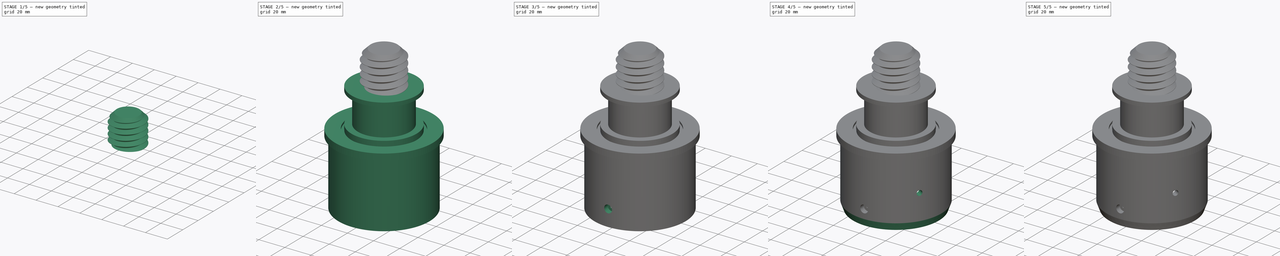
[diagram: build sequence overview — one tinted view per stage of 5, left to right]
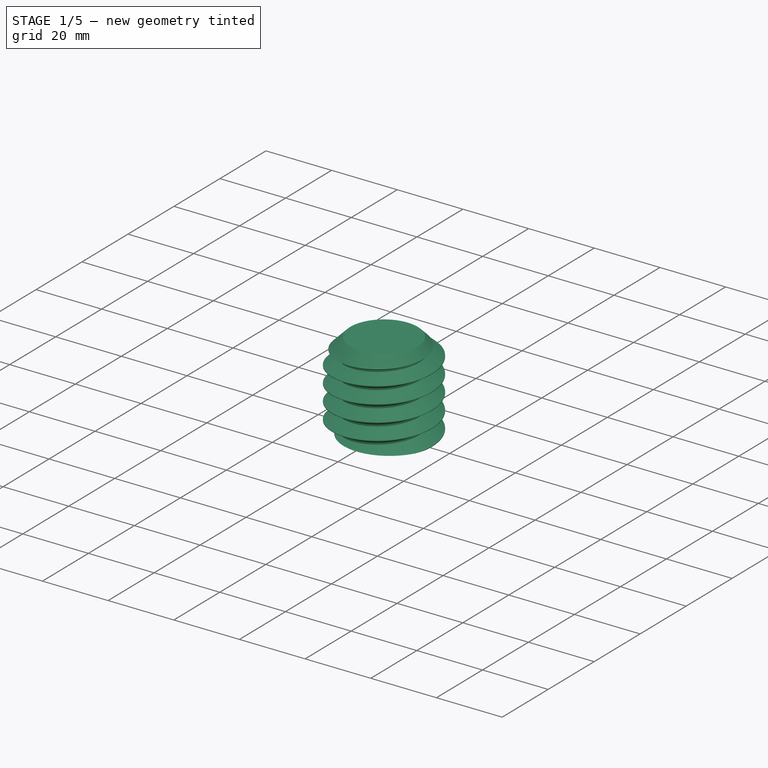
[diagram: stage 1 of 5 — iso view after this stage's code; geometry added in this stage tinted green]
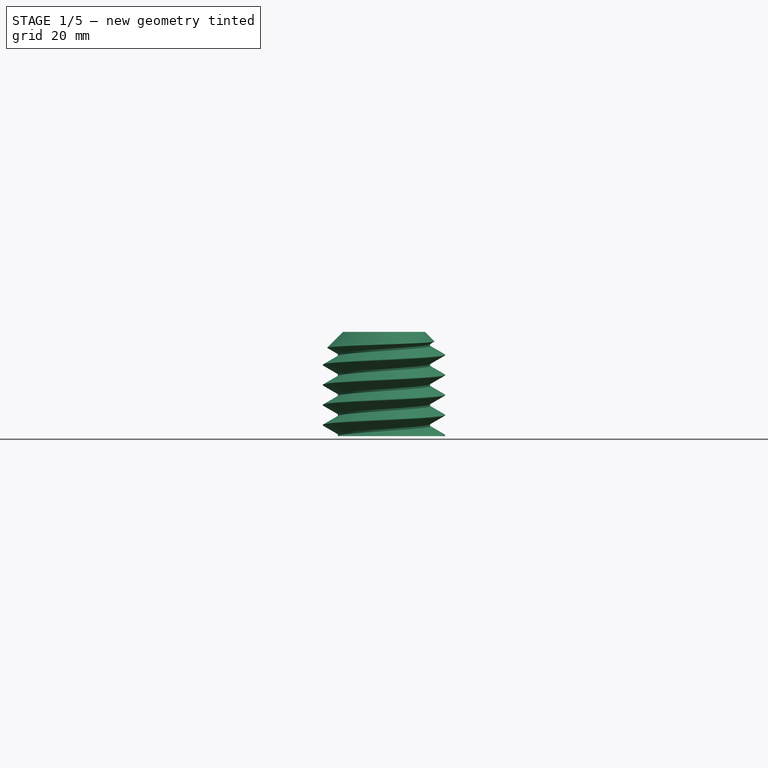
[diagram: stage 1 of 5 — front view after this stage's code; geometry added in this stage tinted green]
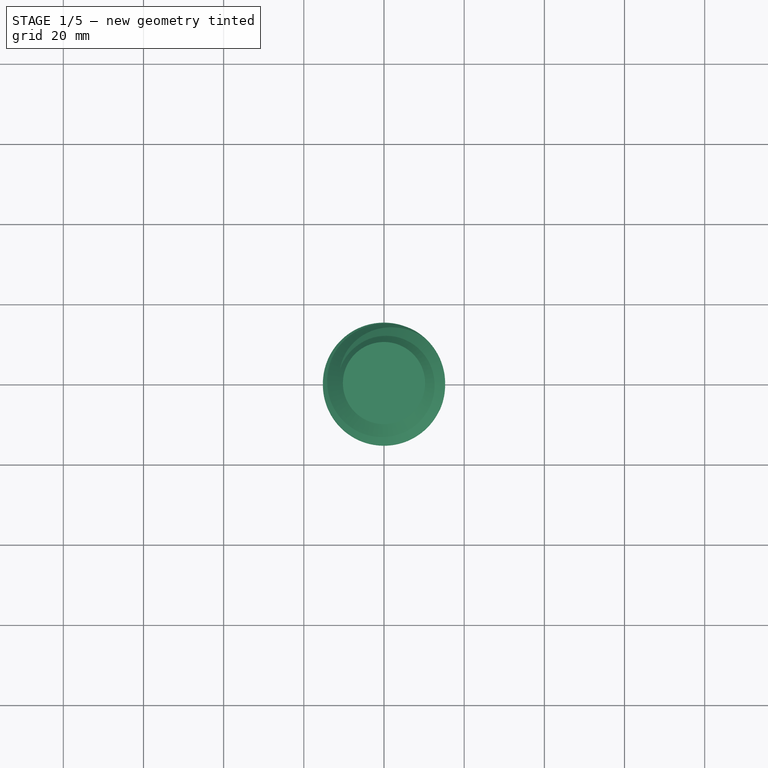
[diagram: stage 1 of 5 — top view after this stage's code; geometry added in this stage tinted green]
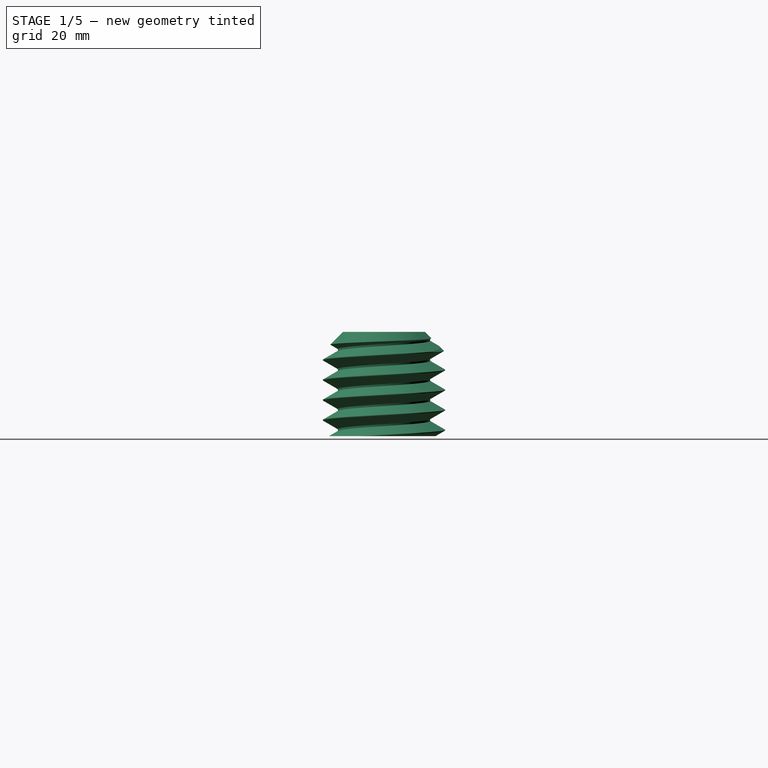
[diagram: stage 1 of 5 — right view after this stage's code; geometry added in this stage tinted green]
FCSTD DOCUMENT  (FreeCAD 0.19R24276 (Git))
Label: Endpiece
License: All rights reserved
LicenseURL: http://en.wikipedia.org/wiki/All_rights_reserved
objects: Sketcher::SketchObject×8, PartDesign::Fillet×4, PartDesign::Pocket×3, PartDesign::Revolution×2, PartDesign::Chamfer×2, PartDesign::Plane×2, PartDesign::Pad×2, PartDesign::SubtractiveHelix×1, PartDesign::Point×1, PartDesign::PolarPattern×1, PartDesign::Body×1
note: 41 computed .brp shape members not serialized (recipe doc carries the construction recipe); baked Part::Feature solids carry a one-line shape summary decoded from their .brp

FEATURE [Sketcher::SketchObject] Sketch
  FullyConstrained = true
  MapMode = 5
  Placement = pos=(0,0,0) rot=(1,0,0;1.5708rad)
  Support = -> [XZ_Plane]
  sketch-geometry (9):
    g0: LineSegment StartX=0 StartY=0 StartZ=0 EndX=15.25 EndY=0 EndZ=0
    g1: LineSegment StartX=15.25 StartY=0 StartZ=0 EndX=15.25 EndY=26 EndZ=0
    g2: LineSegment StartX=15.25 StartY=26 StartZ=0 EndX=0 EndY=26 EndZ=0
    g3: LineSegment StartX=0 StartY=26 StartZ=0 EndX=0 EndY=0 EndZ=0
    g4: LineSegment StartX=15.25 StartY=0 StartZ=0 EndX=9 EndY=0 EndZ=0
    g5: LineSegment StartX=9 StartY=0 StartZ=0 EndX=9 EndY=22.0858 EndZ=0
    g6: LineSegment StartX=9 StartY=22.0858 StartZ=0 EndX=7.58579 EndY=23.5 EndZ=0
    g7: LineSegment StartX=7.58579 StartY=23.5 StartZ=0 EndX=0 EndY=23.5 EndZ=0
    g8: LineSegment StartX=0 StartY=23.5 StartZ=0 EndX=0 EndY=26 EndZ=0
  constraints (25):
    c: Coincident(g0,g1)
    c: Coincident(g1,g2)
    c: Coincident(g2,g3)
    c: Coincident(g3,g0)
    c: Horizontal(g0)
    c: Horizontal(g2)
    c: Vertical(g1)
    c: Vertical(g3)
    c: Coincident(g0,g-1)
    c: DistanceY(g1,g1) = 26
    c: DistanceX(g2,g2) = 15.25
    c: Coincident(g1,g4)
    c: PointOnObject(g4,g0)
    c: Coincident(g4,g5)
    c: Vertical(g5)
    c: Coincident(g5,g6)
    c: Coincident(g6,g7)
    c: PointOnObject(g7,g3)
    c: Horizontal(g7)
    c: Coincident(g7,g8)
    c: Coincident(g8,g2)
    c: Distance(g6) = 2
    c: DistanceY(g8,g8) = 2.5
    c: Angle(g7,g6) = 2.35619
    c: DistanceX(g-1,g4) = 9
FEATURE [PartDesign::Revolution] Revolution
  Angle = 360
  Axis = (0,-2e-16,1)
  Base = (0,0,0)
  Placement = pos=(0,0,0) rot=(1,0,0;1.5708rad)
  Profile = -> Sketch
  ReferenceAxis = -> Sketch [V_Axis]
  Reversed = true
FEATURE [PartDesign::Chamfer] Chamfer
  Angle = 45
  Base = -> Revolution [Edge2]
  BaseFeature = -> Revolution
  ChamferType = 0
  FlipDirection = false
  Placement = pos=(0,0,0) rot=(1,0,0;1.5708rad)
  Size = 5
  Size2 = 1
  SupportTransform = false
FEATURE [Sketcher::SketchObject] Sketch001
  FullyConstrained = true
  MapMode = 5
  Placement = pos=(0,0,0) rot=(1,0,0;1.5708rad)
  Support = -> [XZ_Plane]
  sketch-geometry (4):
    g0: LineSegment StartX=-16.5 StartY=33.3868 StartZ=0 EndX=-16.5 EndY=27.1132 EndZ=0
    g1: LineSegment StartX=-16.5 StartY=27.1132 StartZ=0 EndX=-11.5 EndY=30 EndZ=0
    g2: LineSegment StartX=-11.5 StartY=30 StartZ=0 EndX=-11.5 EndY=30.5 EndZ=0
    g3: LineSegment StartX=-11.5 StartY=30.5 StartZ=0 EndX=-16.5 EndY=33.3868 EndZ=0
  constraints (12):
    c: Vertical(g0)
    c: Coincident(g0,g1)
    c: Coincident(g1,g2)
    c: Vertical(g2)
    c: Coincident(g2,g3)
    c: Coincident(g3,g0)
    c: Equal(g1,g3)
    c: Angle(g3,g1) = 1.0472
    c: DistanceY(g2,g2) = 0.5
    c: DistanceY(g-1,g1) = 30
    c: DistanceX(g1,g-1) = 11.5
    c: DistanceX(g0,g2) = 5
FEATURE [PartDesign::SubtractiveHelix] SubtractiveHelix
  Angle = 0
  Axis = (0,-2e-16,1)
  Base = (0,0,0)
  BaseFeature = -> Chamfer
  HasBeenEdited = true
  Height = 35
  LeftHanded = false
  Mode = 0
  Outside = false
  Pitch = 5
  Placement = pos=(0,0,0) rot=(1,0,0;1.5708rad)
  Profile = -> Sketch001
  ReferenceAxis = -> Sketch001 [V_Axis]
  Reversed = true
  Turns = 3
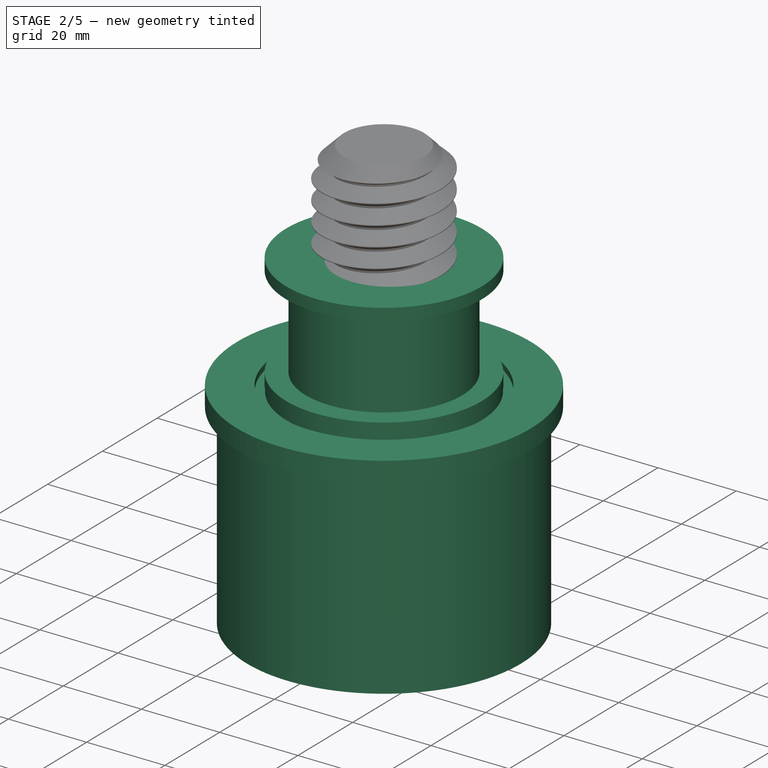
[diagram: stage 2 of 5 — iso view after this stage's code; geometry added in this stage tinted green]
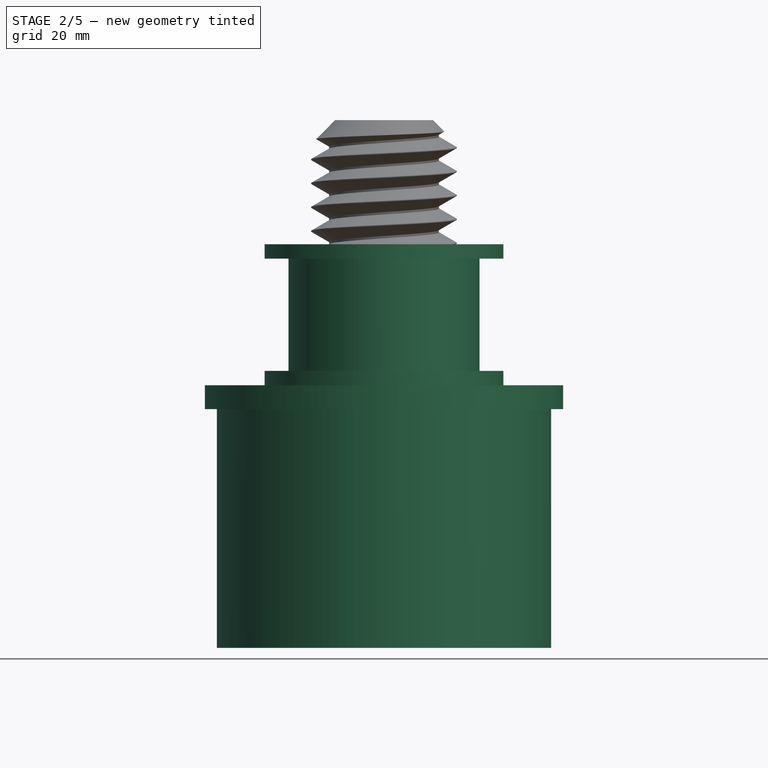
[diagram: stage 2 of 5 — front view after this stage's code; geometry added in this stage tinted green]
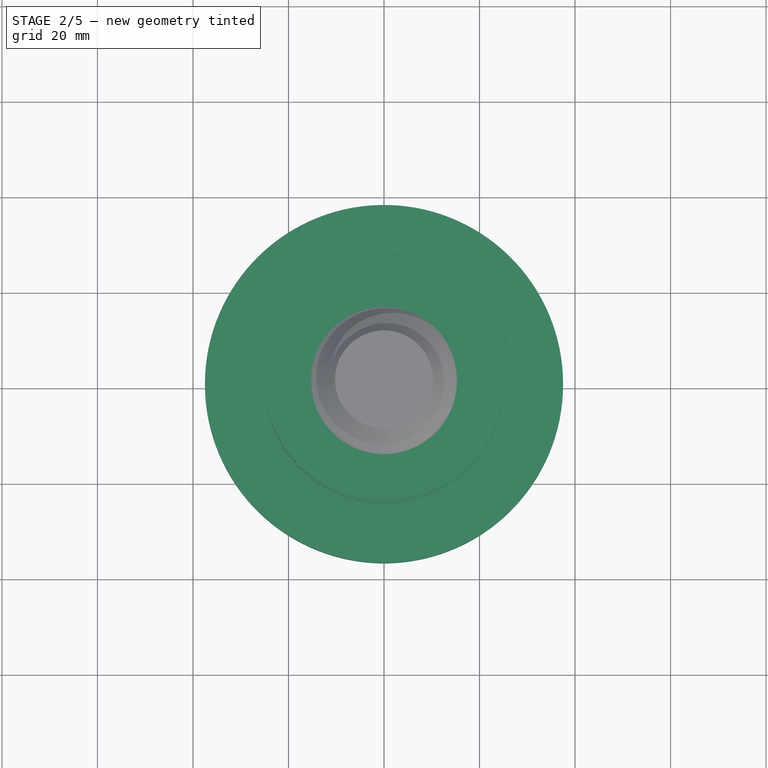
[diagram: stage 2 of 5 — top view after this stage's code; geometry added in this stage tinted green]
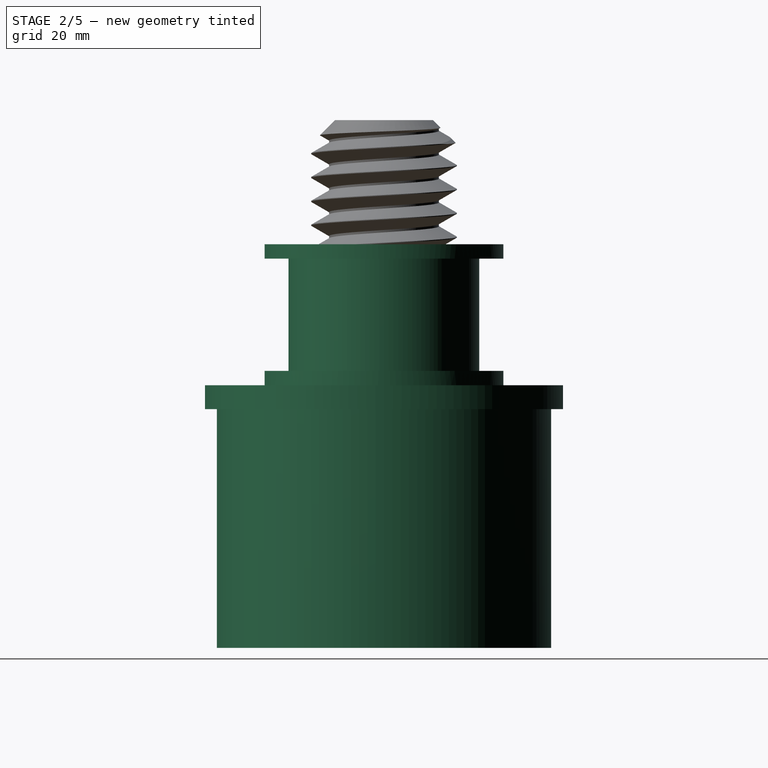
[diagram: stage 2 of 5 — right view after this stage's code; geometry added in this stage tinted green]
FEATURE [PartDesign::Plane] DatumPlane  label="Boden_innen"
  AttachmentOffset = pos=(0,0,-34.5) rot=(0,0,1;0rad)
  Length = 60
  MapMode = 5
  Placement = pos=(0,0,-34.5) rot=(0,0,1;0rad)
  ResizeMode = 0
  Support = -> [XY_Plane]
  Width = 60
FEATURE [PartDesign::Plane] DatumPlane001  label="Unterkante"
  AttachmentOffset = pos=(0,0,-84.5) rot=(0,0,1;0rad)
  Length = 60
  MapMode = 5
  Placement = pos=(0,0,-84.5) rot=(0,0,1;0rad)
  ResizeMode = 0
  Support = -> [XY_Plane]
  Width = 60
FEATURE [Sketcher::SketchObject] Sketch002
  ExternalGeometry = -> [DatumPlane,DatumPlane001]
  FullyConstrained = true
  MapMode = 5
  Placement = pos=(0,0,0) rot=(1,0,0;1.5708rad)
  Support = -> [XZ_Plane]
  sketch-geometry (25):
    g0: LineSegment StartX=0 StartY=0 StartZ=0 EndX=25 EndY=0 EndZ=0
    g1: LineSegment StartX=25 StartY=0 StartZ=0 EndX=25 EndY=-3 EndZ=0
    g2: LineSegment StartX=25 StartY=-3 StartZ=0 EndX=20 EndY=-3 EndZ=0
    g3: LineSegment StartX=20 StartY=-3 StartZ=0 EndX=20 EndY=-26.5 EndZ=0
    g4: LineSegment StartX=20 StartY=-26.5 StartZ=0 EndX=25 EndY=-26.5 EndZ=0
    g5: LineSegment StartX=25 StartY=-26.5 StartZ=0 EndX=25 EndY=-29.5 EndZ=0
    g6: LineSegment StartX=37.5 StartY=-29.5 StartZ=0 EndX=37.5 EndY=-34.5 EndZ=0
    g7: LineSegment StartX=37.5 StartY=-34.5 StartZ=0 EndX=35 EndY=-34.5 EndZ=0
    g8: LineSegment StartX=35 StartY=-34.5 StartZ=0 EndX=35 EndY=-84.5 EndZ=0
    g9: LineSegment StartX=35 StartY=-84.5 StartZ=0 EndX=0 EndY=-84.5 EndZ=0
    g10: LineSegment StartX=0 StartY=-84.5 StartZ=0 EndX=0 EndY=0 EndZ=0
    g11: LineSegment StartX=25 StartY=-29.5 StartZ=0 EndX=24.9 EndY=-29.5 EndZ=0
    g12: LineSegment StartX=24.9 StartY=-29.5 StartZ=0 EndX=24.9 EndY=-31 EndZ=0
    g13: LineSegment StartX=24.9 StartY=-31 StartZ=0 EndX=27.1 EndY=-31 EndZ=0
    g14: LineSegment StartX=27.1 StartY=-31 StartZ=0 EndX=27.1 EndY=-29.5 EndZ=0
    g15: LineSegment StartX=27.1 StartY=-29.5 StartZ=0 EndX=37.5 EndY=-29.5 EndZ=0
    g16: LineSegment StartX=35 StartY=-84.5 StartZ=0 EndX=30 EndY=-84.5 EndZ=0
    g17: LineSegment StartX=30 StartY=-84.5 StartZ=0 EndX=30 EndY=-34.5 EndZ=0
    g18: LineSegment StartX=30 StartY=-34.5 StartZ=0 EndX=21.5 EndY=-34.5 EndZ=0
    g19: LineSegment StartX=21.5 StartY=-34.5 StartZ=0 EndX=21.5 EndY=-29.5 EndZ=0
    g20: LineSegment StartX=21.5 StartY=-29.5 StartZ=0 EndX=17 EndY=-29.5 EndZ=0
    g21: LineSegment StartX=17 StartY=-29.5 StartZ=0 EndX=17 EndY=-3 EndZ=0
    g22: LineSegment StartX=17 StartY=-3 StartZ=0 EndX=9 EndY=-3 EndZ=0
    g23: LineSegment StartX=9 StartY=-3 StartZ=0 EndX=9 EndY=0 EndZ=0
    g24: LineSegment StartX=9 StartY=0 StartZ=0 EndX=25 EndY=0 EndZ=0
  constraints (70):
    c: Coincident(g-1,g0)
    c: PointOnObject(g0,g-1)
    c: Coincident(g0,g1)
    c: Vertical(g1)
    c: Coincident(g1,g2)
    c: Horizontal(g2)
    c: Coincident(g2,g3)
    c: Vertical(g3)
    c: Coincident(g3,g4)
    c: Horizontal(g4)
    c: Coincident(g4,g5)
    c: Vertical(g6)
    c: Coincident(g6,g7)
    c: Horizontal(g7)
    c: Coincident(g7,g8)
    c: Vertical(g8)
    c: Coincident(g8,g9)
    c: PointOnObject(g9,g-2)
    c: Horizontal(g9)
    c: Coincident(g9,g10)
    c: Coincident(g10,g0)
    c: DistanceY(g5,g0) = 29.5
    c: DistanceY(g6,g6) = 5
    c: DistanceX(g0,g0) = 25
    c: DistanceX(g0,g6) = 37.5
    c: DistanceX(g9,g9) = 35
    c: Tangent(g1,g5)
    c: Coincident(g5,g11)
    c: Horizontal(g11)
    c: Coincident(g11,g12)
    c: Vertical(g12)
    c: Coincident(g12,g13)
    c: Horizontal(g13)
    c: Coincident(g13,g14)
    c: Vertical(g14)
    c: Coincident(g14,g15)
    c: Coincident(g15,g6)
    c: Tangent(g11,g15)
    c: DistanceX(g13,g13) = 2.2
    c: DistanceY(g14,g14) = 1.5
    c: DistanceY(g5,g5) = 3
    c: DistanceY(g1,g1) = 3
    c: DistanceX(g0,g2) = 20
    c: DistanceX(g0,g14) = 27.1
    c: Coincident(g8,g16)
    c: PointOnObject(g16,g9)
    c: Coincident(g16,g17)
    c: Vertical(g17)
    c: Coincident(g17,g18)
    c: Horizontal(g18)
    c: Coincident(g18,g19)
    c: Vertical(g19)
    c: Coincident(g19,g20)
    c: Horizontal(g20)
    c: Coincident(g20,g21)
    c: Vertical(g21)
    c: Coincident(g21,g22)
    c: Coincident(g22,g23)
    c: PointOnObject(g23,g0)
    c: Vertical(g23)
    c: Coincident(g23,g24)
    c: Coincident(g24,g1)
    c: DistanceX(g-1,g22) = 9
    c: Tangent(g22,g2)
    c: DistanceX(g21,g2) = 3
    c: DistanceY(g19,g3) = 3
    c: DistanceX(g3,g19) = 1.5
    c: DistanceX(g9,g16) = 30
    c: PointOnObject(g18,g-3)
    c: PointOnObject(g8,g-4)
FEATURE [PartDesign::Revolution] Revolution001
  Angle = 360
  Axis = (0,-2e-16,1)
  Base = (0,0,0)
  BaseFeature = -> SubtractiveHelix
  Placement = pos=(0,0,0) rot=(1,0,0;1.5708rad)
  Profile = -> Sketch002
  ReferenceAxis = -> Sketch002 [V_Axis]
  Reversed = true
FEATURE [Sketcher::SketchObject] Sketch003
  ExternalGeometry = -> [Revolution001]
  FullyConstrained = true
  MapMode = 5
  Placement = pos=(0,0,0) rot=(1,0,0;1.5708rad)
  Support = -> [XZ_Plane]
  sketch-geometry (4):
    g0: LineSegment StartX=-1.5 StartY=-3 StartZ=0 EndX=1.5 EndY=-3 EndZ=0
    g1: LineSegment StartX=1.5 StartY=-3 StartZ=0 EndX=1.5 EndY=-26.5 EndZ=0
    g2: LineSegment StartX=1.5 StartY=-26.5 StartZ=0 EndX=-1.5 EndY=-26.5 EndZ=0
    g3: LineSegment StartX=-1.5 StartY=-26.5 StartZ=0 EndX=-1.5 EndY=-3 EndZ=0
  constraints (10):
    c: Coincident(g0,g1)
    c: Coincident(g1,g2)
    c: Coincident(g2,g3)
    c: Coincident(g3,g0)
    c: Vertical(g1)
    c: Vertical(g3)
    c: Symmetric(g0,g0,g-2)
    c: DistanceX(g2,g2) = 3
    c: Tangent(g-4,g2)
    c: PointOnObject(g0,g-3)
FEATURE [PartDesign::Pocket] Pocket
  BaseFeature = -> Revolution001
  Length = 5
  Length2 = 100
  Placement = pos=(0,0,0) rot=(1,0,0;1.5708rad)
  Profile = -> Sketch003
  Type = 1
FEATURE [Sketcher::SketchObject] Sketch004
  FullyConstrained = true
  MapMode = 5
  Placement = pos=(0,7.7e-15,-34.5) rot=(1,0,0;3.14159rad)
  Support = -> [Pocket,DatumPlane]
  sketch-geometry (17):
    g0: LineSegment StartX=9.5 StartY=21.8 StartZ=0 EndX=13 EndY=21.8 EndZ=0
    g1: LineSegment StartX=13 StartY=21.8 StartZ=0 EndX=13 EndY=23.8 EndZ=0
    g2: LineSegment StartX=13 StartY=23.8 StartZ=0 EndX=12 EndY=23.8 EndZ=0
    g3: LineSegment StartX=12 StartY=23.8 StartZ=0 EndX=12 EndY=26.3 EndZ=0
    g4: LineSegment StartX=12 StartY=26.3 StartZ=0 EndX=15.5 EndY=26.3 EndZ=0
    g5: LineSegment StartX=15.5 StartY=26.3 StartZ=0 EndX=15.5 EndY=19.3 EndZ=0
    g6: LineSegment StartX=15.5 StartY=19.3 StartZ=0 EndX=9.5 EndY=19.3 EndZ=0
    g7: LineSegment StartX=9.5 StartY=19.3 StartZ=0 EndX=9.5 EndY=21.8 EndZ=0
    g8: LineSegment StartX=-9.5 StartY=19.3 StartZ=0 EndX=-15.5 EndY=19.3 EndZ=0
    g9: LineSegment StartX=-15.5 StartY=19.3 StartZ=0 EndX=-15.5 EndY=26.3 EndZ=0
    g10: LineSegment StartX=-15.5 StartY=26.3 StartZ=0 EndX=-12 EndY=26.3 EndZ=0
    g11: LineSegment StartX=-12 StartY=26.3 StartZ=0 EndX=-12 EndY=23.8 EndZ=0
    g12: LineSegment StartX=-12 StartY=23.8 StartZ=0 EndX=-13 EndY=23.8 EndZ=0
    g13: LineSegment StartX=-13 StartY=23.8 StartZ=0 EndX=-13 EndY=21.8 EndZ=0
    g14: LineSegment StartX=-13 StartY=21.8 StartZ=0 EndX=-9.5 EndY=21.8 EndZ=0
    g15: LineSegment StartX=-9.5 StartY=21.8 StartZ=0 EndX=-9.5 EndY=19.3 EndZ=0
    g16: LineSegment StartX=13 StartY=21.8 StartZ=0 EndX=15.5 EndY=21.8 EndZ=0
  constraints (47):
    c: Horizontal(g0)
    c: Coincident(g0,g1)
    c: Vertical(g1)
    c: Coincident(g1,g2)
    c: Horizontal(g2)
    c: Coincident(g2,g3)
    c: Coincident(g3,g4)
    c: Horizontal(g4)
    c: Coincident(g4,g5)
    c: Vertical(g5)
    c: Coincident(g5,g6)
    c: Horizontal(g6)
    c: Coincident(g6,g7)
    c: Coincident(g7,g0)
    c: Vertical(g7)
    c: Horizontal(g8)
    c: Coincident(g8,g9)
    c: Vertical(g9)
    c: Coincident(g9,g10)
    c: Coincident(g10,g11)
    c: Vertical(g11)
    c: Coincident(g11,g12)
    c: Coincident(g12,g13)
    c: Vertical(g13)
    c: Coincident(g13,g14)
    c: Horizontal(g14)
    c: Coincident(g14,g15)
    c: Coincident(g15,g8)
    c: Vertical(g15)
    c: Horizontal(g12)
    c: Symmetric(g9,g4,g-2)
    c: Symmetric(g8,g6,g-2)
    c: Symmetric(g0,g13,g-2)
    c: Symmetric(g11,g2,g-2)
    c: DistanceY(g1,g1) = 2
    c: Equal(g7,g3)
    c: DistanceX(g0,g0) = 3.5
    c: DistanceX(g2,g2) = 1
    c: Vertical(g3)
    c: Coincident(g16,g0)
    c: PointOnObject(g16,g5)
    c: Horizontal(g16)
    c: Equal(g16,g7)
    c: Horizontal(g10)
    c: DistanceX(g-1,g0) = 13
    c: DistanceY(g-1,g0) = 21.8
    c: DistanceY(g15,g15) = 2.5
FEATURE [PartDesign::Pad] Pad
  BaseFeature = -> Pocket
  Direction = (1,1,1)
  Length = 36
  Length2 = 100
  Placement = pos=(0,0,0) rot=(1,0,0;1.5708rad)
  Profile = -> Sketch004
  Type = 0
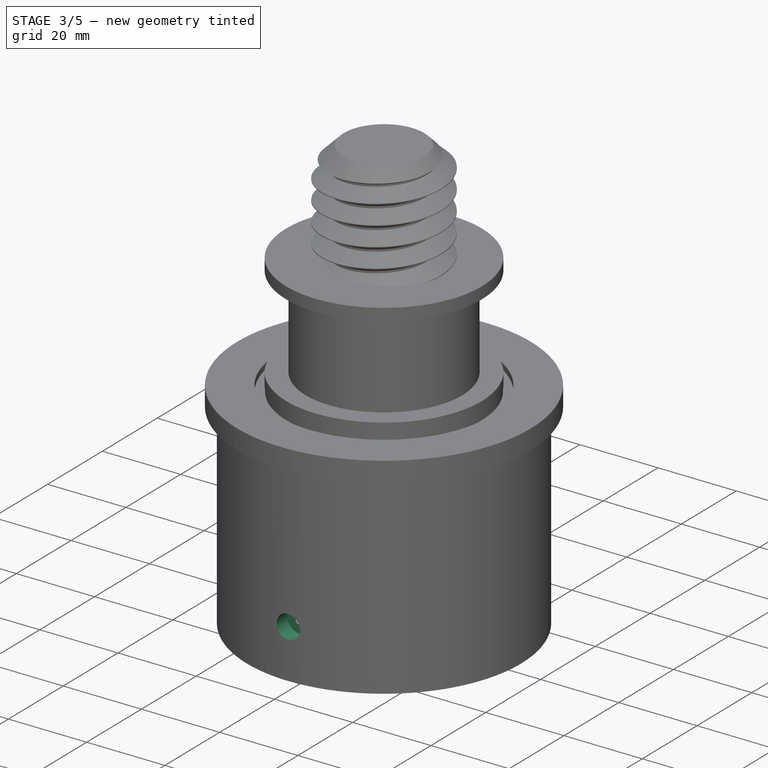
[diagram: stage 3 of 5 — iso view after this stage's code; geometry added in this stage tinted green]
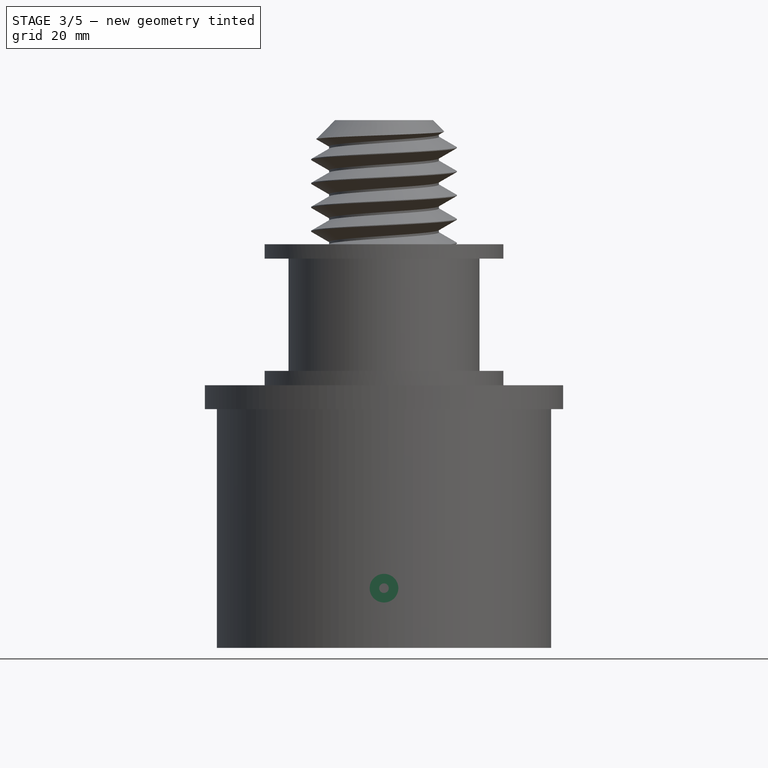
[diagram: stage 3 of 5 — front view after this stage's code; geometry added in this stage tinted green]
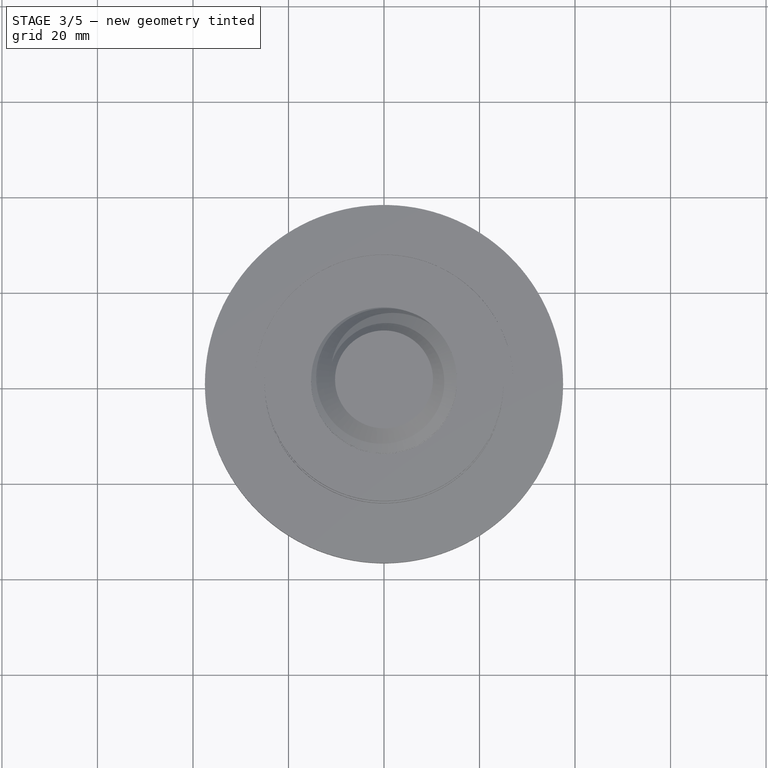
[diagram: stage 3 of 5 — top view after this stage's code; geometry added in this stage tinted green]
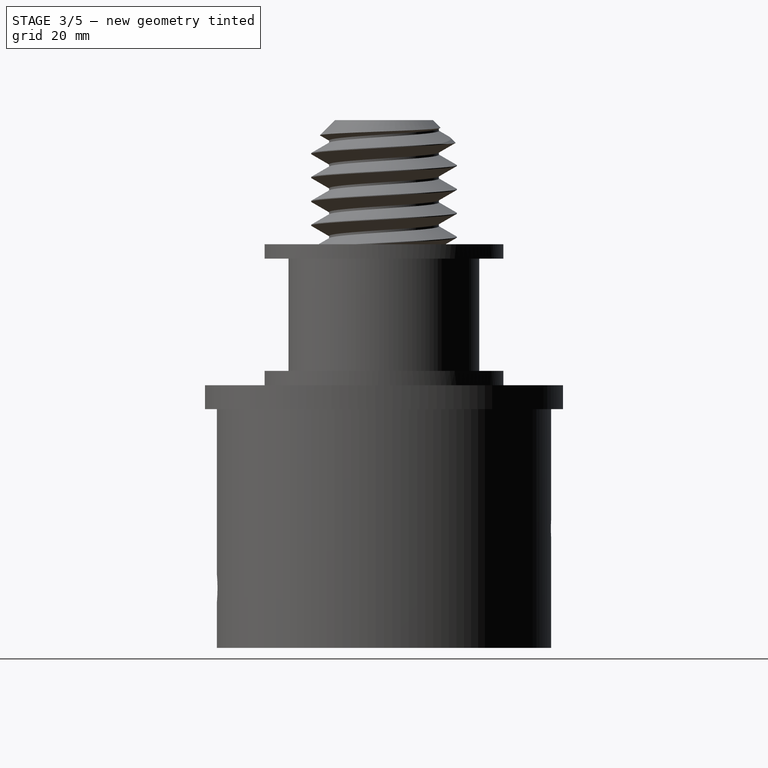
[diagram: stage 3 of 5 — right view after this stage's code; geometry added in this stage tinted green]
FEATURE [Sketcher::SketchObject] Sketch007
  ExternalGeometry = -> [DatumPlane001]
  FullyConstrained = true
  MapMode = 5
  Placement = pos=(0,0,0) rot=(1,0,0;1.5708rad)
  Support = -> [XZ_Plane]
  sketch-geometry (1):
    g0: Circle CenterX=0 CenterY=-59.5 CenterZ=0 NormalX=0 NormalY=0 NormalZ=1 AngleXU=0 Radius=2
  constraints (3):
    c: PointOnObject(g0,g-2)
    c: Diameter(g0) = 4
    c: Distance(g0,g-3) = 25
FEATURE [PartDesign::Point] DatumPoint  label="Bestigungsbohrung_PCB"
  AttacherType = Attacher::AttachEnginePoint
  AttachmentOffset = pos=(0,0,12.5) rot=(0,0,1;0rad)
  MapMode = 32
  Placement = pos=(0,0,-72) rot=(0,0,1;0rad)
  Support = -> [DatumPlane001]
FEATURE [Sketcher::SketchObject] Sketch005
  ExternalGeometry = -> [DatumPoint]
  FullyConstrained = true
  MapMode = 5
  Placement = pos=(0,0,0) rot=(1,0,0;1.5708rad)
  Support = -> [XZ_Plane]
  sketch-geometry (1):
    g0: Circle CenterX=0 CenterY=-72 CenterZ=0 NormalX=0 NormalY=0 NormalZ=1 AngleXU=0 Radius=3
  constraints (2):
    c: Diameter(g0) = 6
    c: Coincident(g0,g-3)
FEATURE [PartDesign::Pocket] Pocket001
  BaseFeature = -> Pad
  Length = 5
  Length2 = 100
  Placement = pos=(0,0,0) rot=(1,0,0;1.5708rad)
  Profile = -> Sketch005
  Reversed = true
  Type = 1
FEATURE [Sketcher::SketchObject] Sketch006
  AttachmentOffset = pos=(0,0,28) rot=(0,0,1;0rad)
  ExternalGeometry = -> [DatumPlane001,DatumPoint]
  FullyConstrained = true
  MapMode = 5
  Placement = pos=(0,-28,-6.2e-15) rot=(1,0,0;1.5708rad)
  Support = -> [XZ_Plane]
  sketch-geometry (2):
    g0: Circle CenterX=0 CenterY=-72 CenterZ=0 NormalX=0 NormalY=0 NormalZ=1 AngleXU=0 Radius=1
    g1: Circle CenterX=0 CenterY=-72 CenterZ=0 NormalX=0 NormalY=0 NormalZ=1 AngleXU=0 Radius=4
  constraints (4):
    c: Coincident(g1,g0)
    c: Diameter(g0) = 2
    c: Diameter(g1) = 8
    c: Coincident(g0,g-4)
FEATURE [PartDesign::Pad] Pad001
  BaseFeature = -> Pocket001
  Direction = (1,1,1)
  Length = 3
  Length2 = 100
  Placement = pos=(0,0,0) rot=(1,0,0;1.5708rad)
  Profile = -> Sketch006
  Type = 0
FEATURE [PartDesign::Pocket] Pocket002
  BaseFeature = -> Pad001
  Length = 5
  Length2 = 100
  Placement = pos=(0,0,0) rot=(1,0,0;1.5708rad)
  Profile = -> Sketch007
  Type = 1
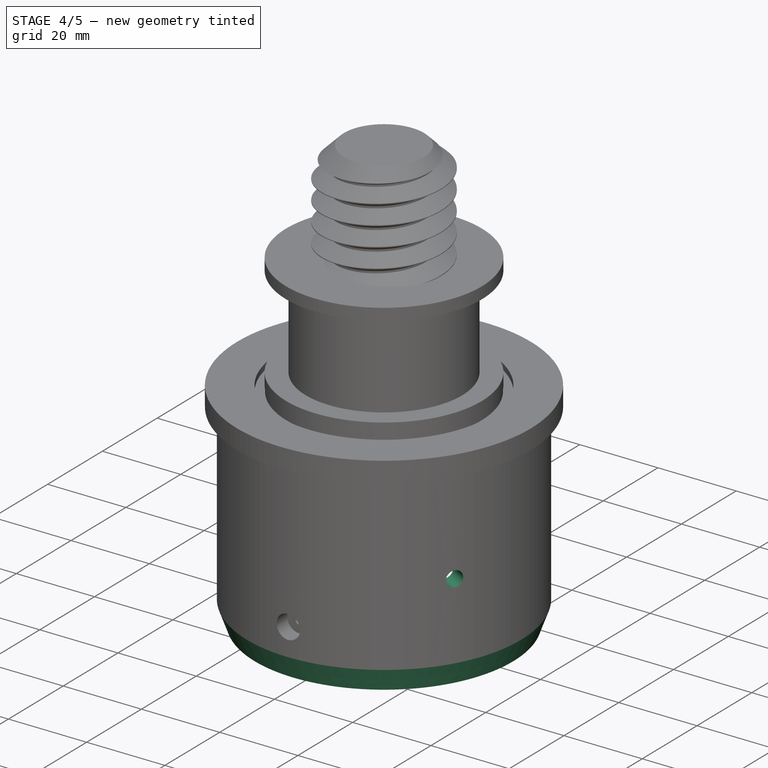
[diagram: stage 4 of 5 — iso view after this stage's code; geometry added in this stage tinted green]
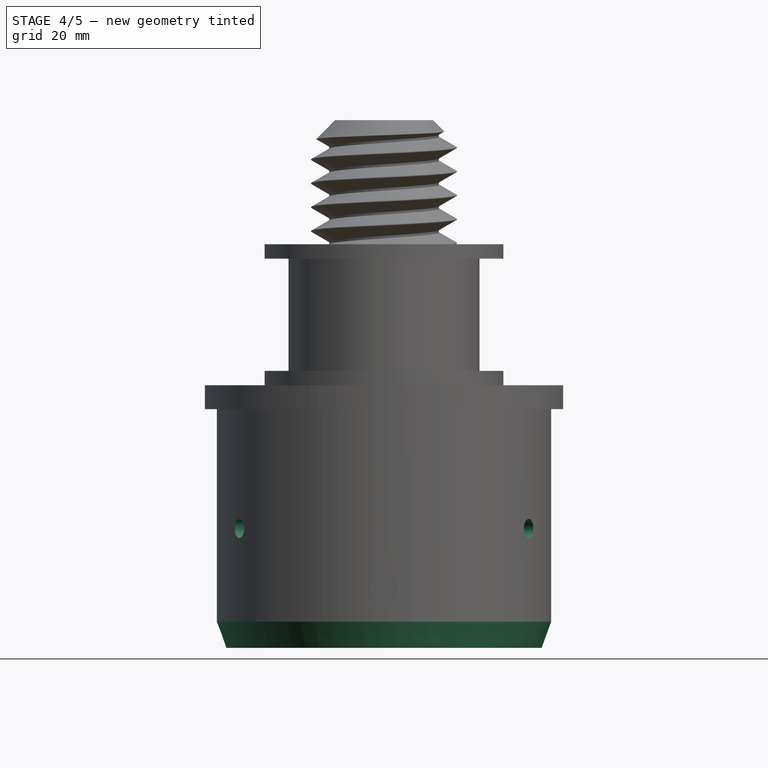
[diagram: stage 4 of 5 — front view after this stage's code; geometry added in this stage tinted green]
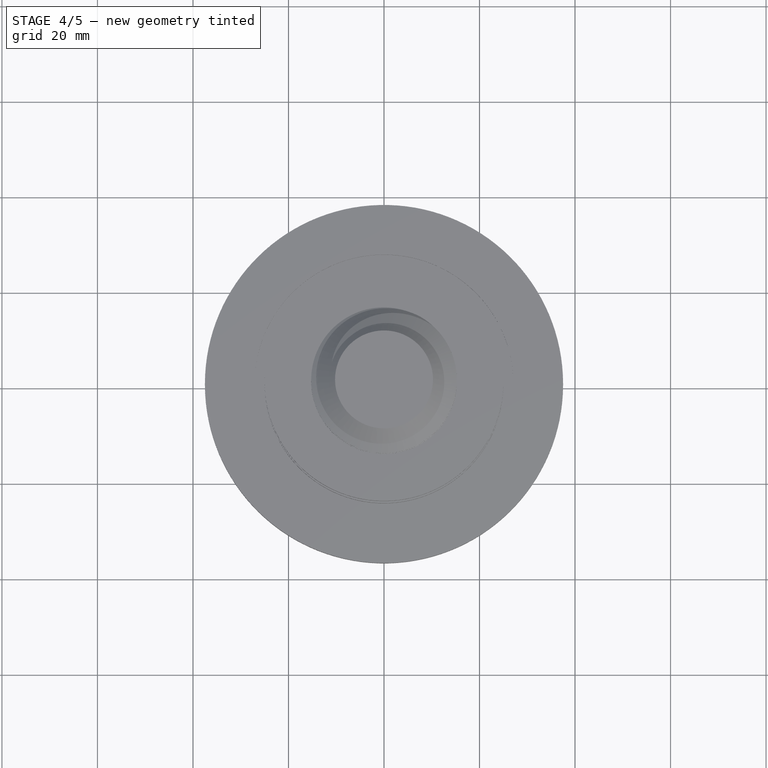
[diagram: stage 4 of 5 — top view after this stage's code; geometry added in this stage tinted green]
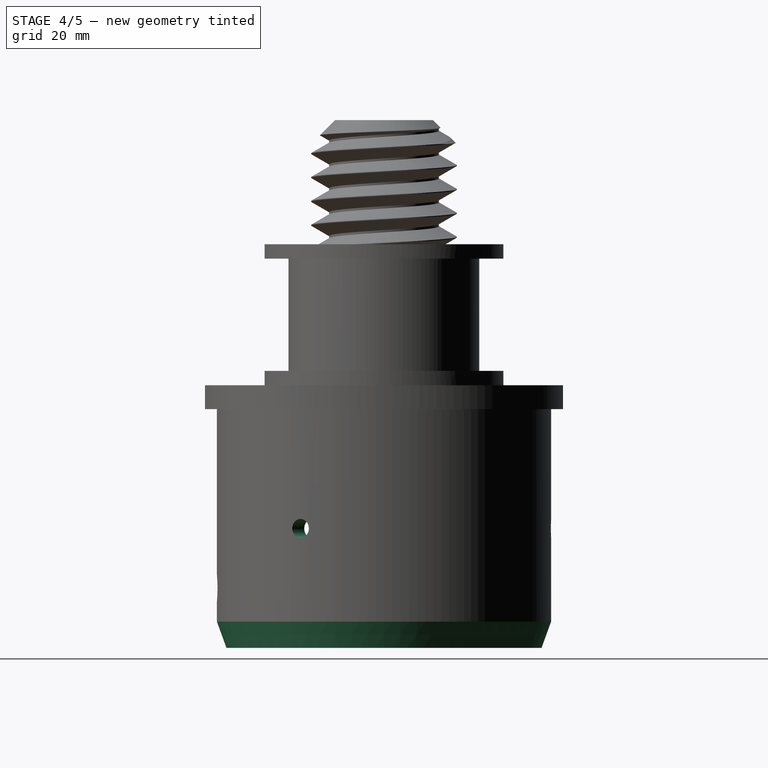
[diagram: stage 4 of 5 — right view after this stage's code; geometry added in this stage tinted green]
FEATURE [PartDesign::PolarPattern] PolarPattern
  Angle = 360
  Axis = -> Z_Axis
  BaseFeature = -> Pocket002
  Occurrences = 3
  Originals = -> [Pocket002]
  Placement = pos=(0,0,0) rot=(1,0,0;1.5708rad)
FEATURE [PartDesign::Fillet] Fillet
  Base = -> PolarPattern [Edge146]
  BaseFeature = -> PolarPattern
  Placement = pos=(0,0,0) rot=(1,0,0;1.5708rad)
  Radius = 1.5
  SupportTransform = false
FEATURE [PartDesign::Chamfer] Chamfer001
  Angle = 70
  Base = -> Fillet [Edge30]
  BaseFeature = -> Fillet
  ChamferType = 2
  FlipDirection = false
  Placement = pos=(0,0,0) rot=(1,0,0;1.5708rad)
  Size = 2
  Size2 = 1
  SupportTransform = false
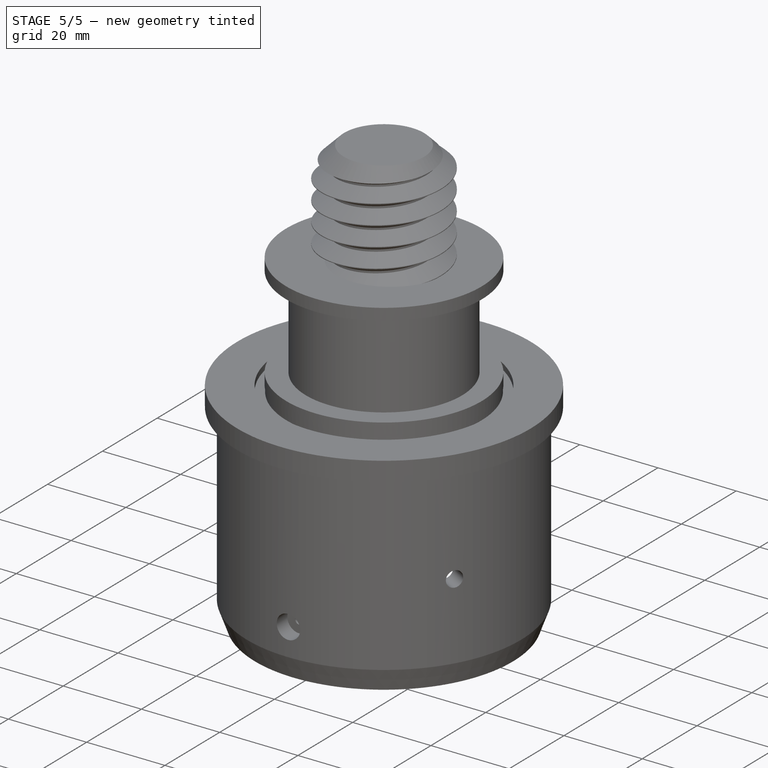
[diagram: stage 5 of 5 — iso view after this stage's code; geometry added in this stage tinted green]
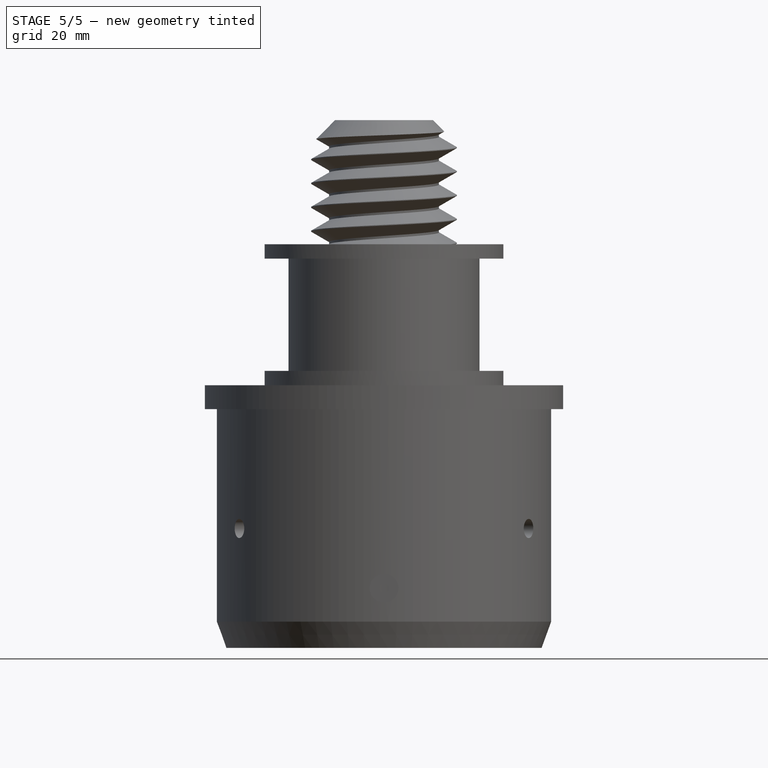
[diagram: stage 5 of 5 — front view after this stage's code; geometry added in this stage tinted green]
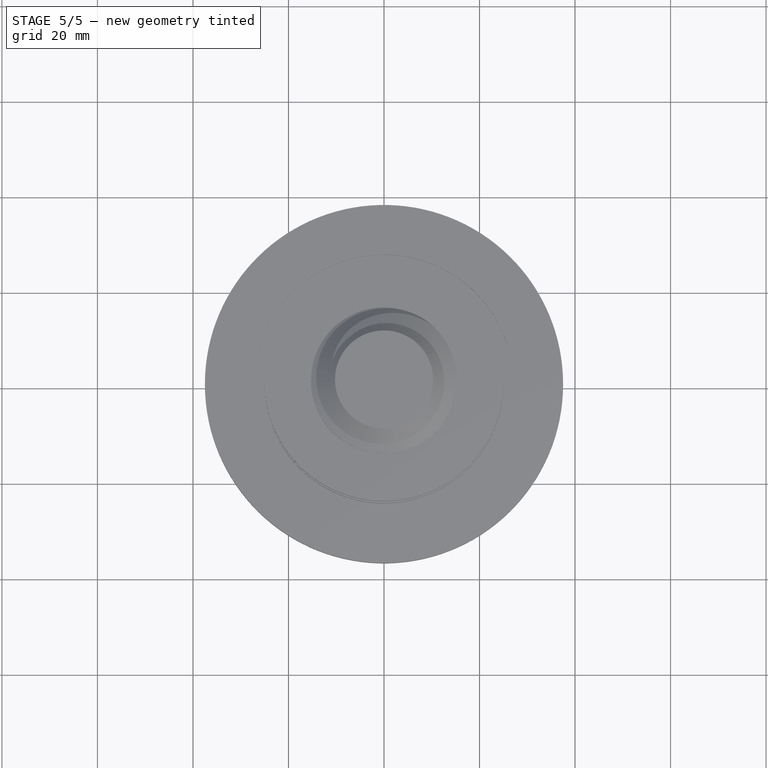
[diagram: stage 5 of 5 — top view after this stage's code; geometry added in this stage tinted green]
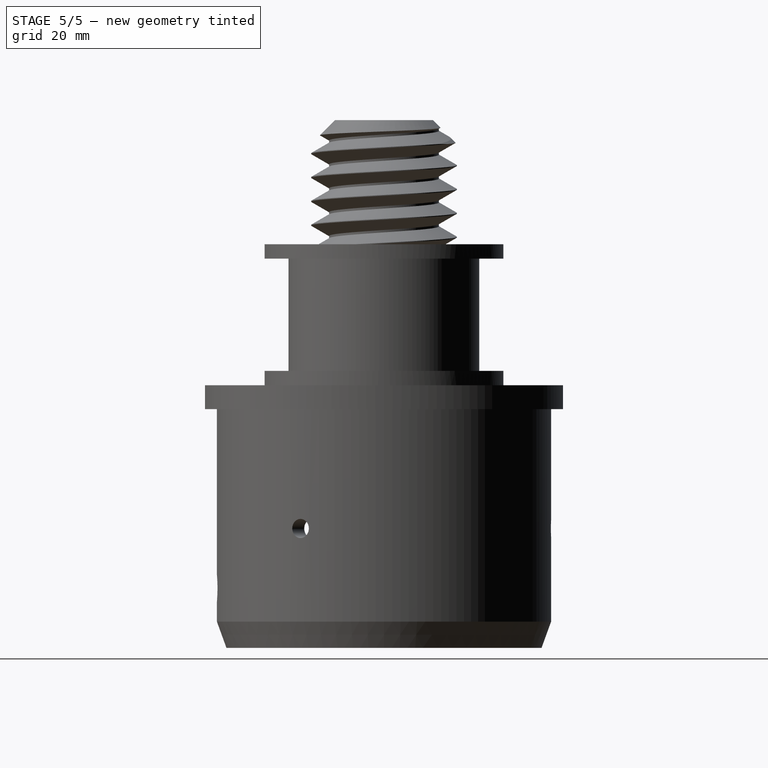
[diagram: stage 5 of 5 — right view after this stage's code; geometry added in this stage tinted green]
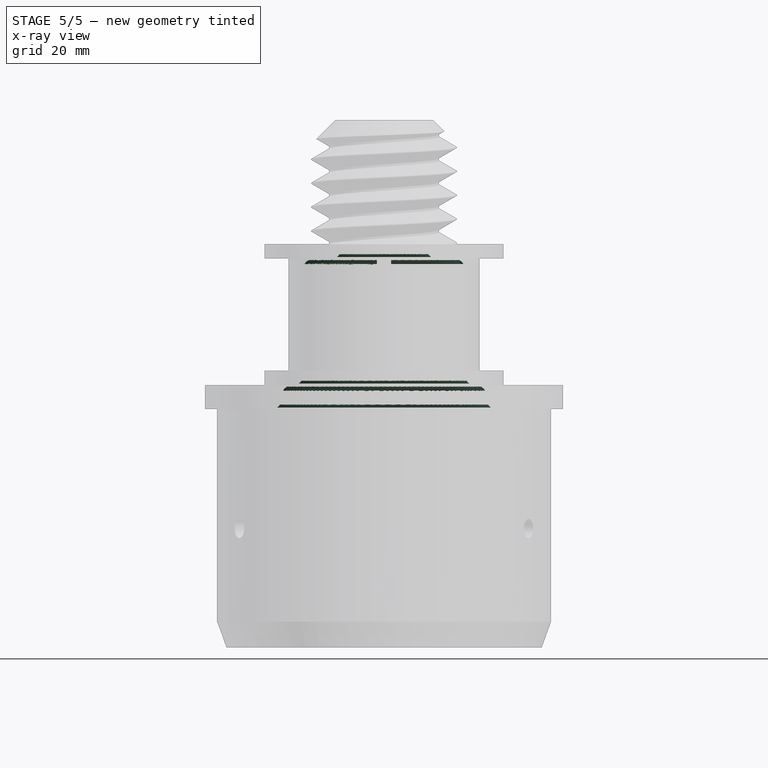
[diagram: stage 5 of 5 — x-ray composite at the front view; earlier geometry ghosted, this stage's added geometry solid]
FEATURE [PartDesign::Fillet] Fillet001
  Base = -> Chamfer001 [Edge85,Edge75,Edge56,Edge94,Edge12,Edge18,Edge16,Edge14]
  BaseFeature = -> Chamfer001
  Placement = pos=(0,0,0) rot=(1,0,0;1.5708rad)
  Radius = 0.5
  SupportTransform = false
FEATURE [PartDesign::Fillet] Fillet002
  Base = -> Fillet001 [Edge138,Edge122,Edge48]
  BaseFeature = -> Fillet001
  Placement = pos=(0,0,0) rot=(1,0,0;1.5708rad)
  Radius = 2
  SupportTransform = false
FEATURE [PartDesign::Fillet] Fillet003
  Base = -> Fillet002 [Edge155,Edge70]
  BaseFeature = -> Fillet002
  Placement = pos=(0,0,0) rot=(1,0,0;1.5708rad)
  Radius = 2.35
  SupportTransform = false
FEATURE [PartDesign::Body] Body
  Group = -> [DatumPlane,DatumPlane001,DatumPoint,Sketch,Revolution,Chamfer,Sketch001,SubtractiveHelix,Sketch002,Revolution001,Sketch003,Pocket,Sketch004,Pad,Sketch005,Pocket001,Sketch006,Pad001,Sketch007,Pocket002,PolarPattern,Fillet,Chamfer001,Fillet001,Fillet002,Fillet003]
  Origin = -> Origin
  Tip = -> Fillet003
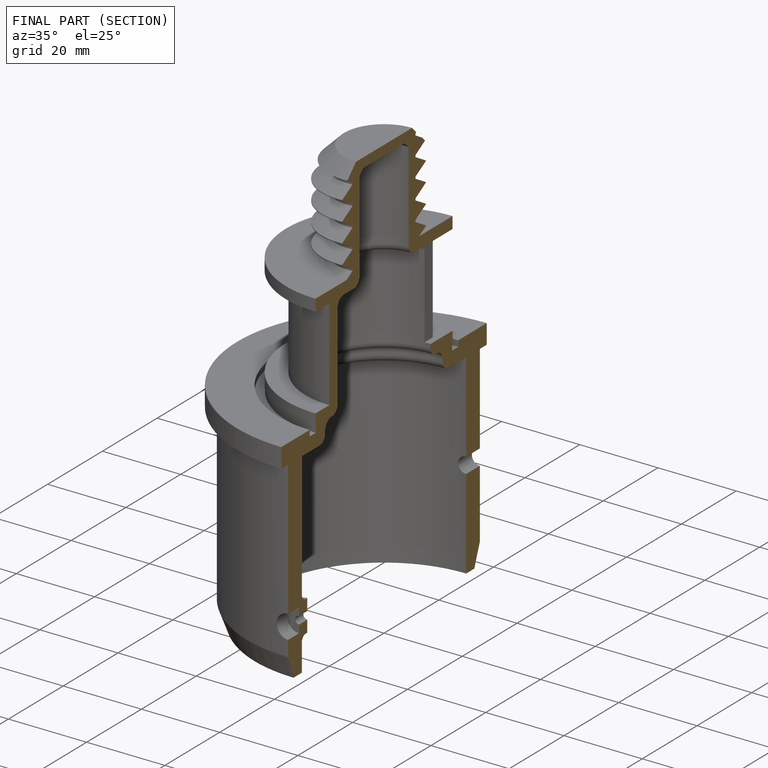
[diagram: finished part — half-section view (interior)]
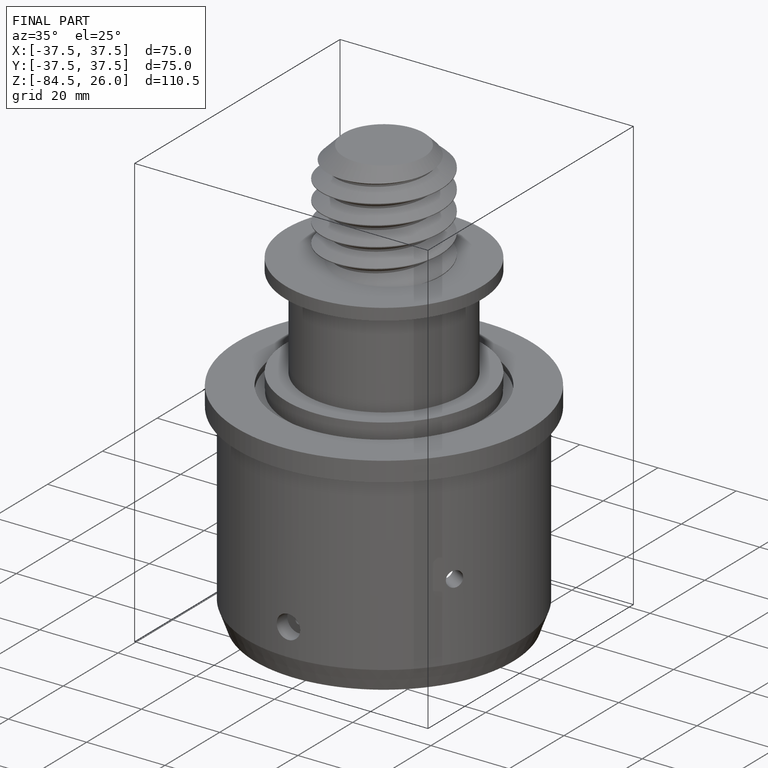
[diagram: finished part — iso view with bounding-box wireframe]
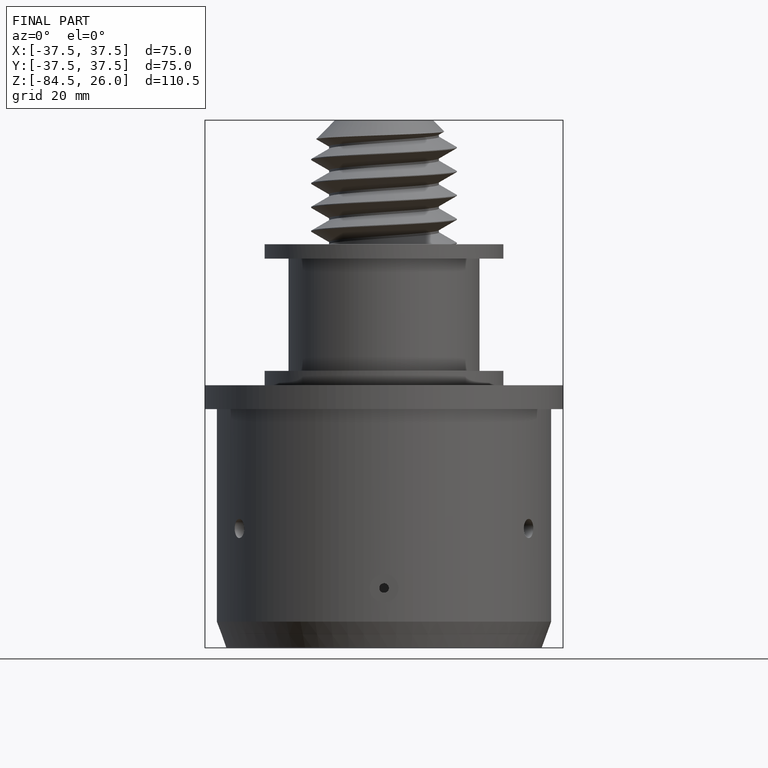
[diagram: finished part — front view with bounding-box wireframe]
